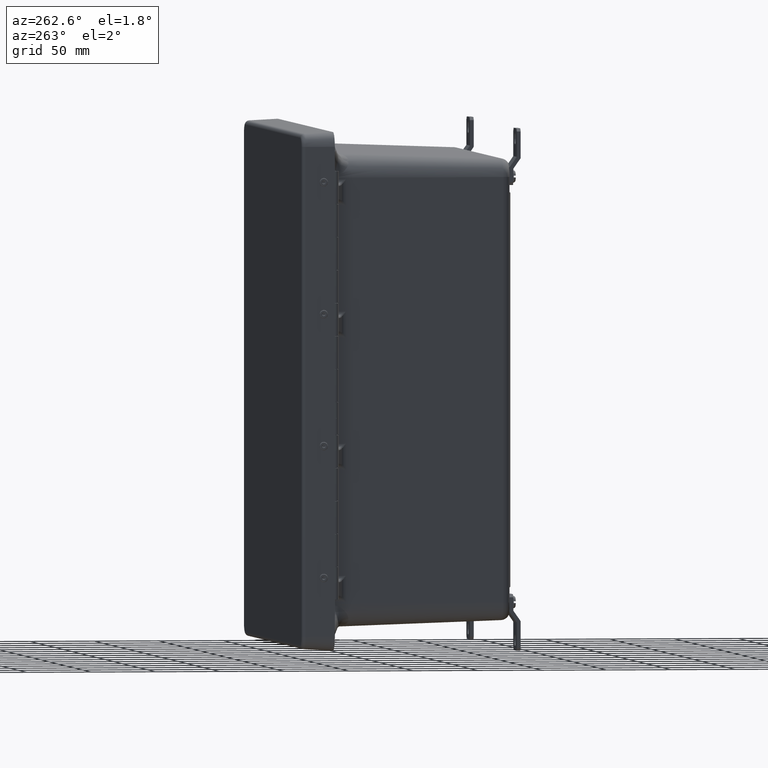
[diagram: clean part render]
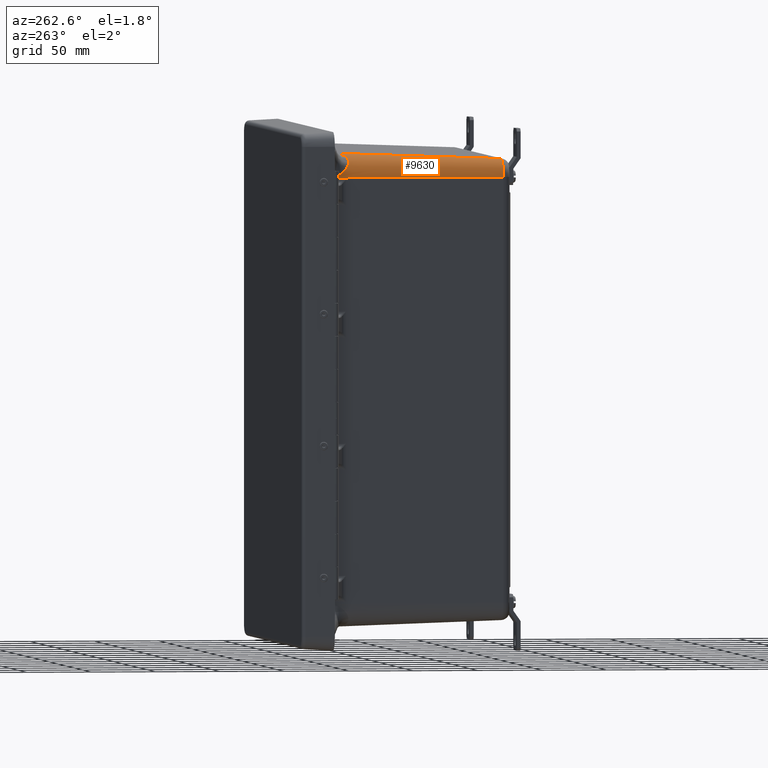
[diagram: same view with one face highlighted and labeled with its STEP entity id]
A machine part, auxiliary view. The second image highlights one B-rep face of the part: STEP entity #9630.
In plain terms, the highlighted conical surface has half-angle 2 deg.
Its self-contained STEP definition (entity closure, byte-faithful):
#395 = DIRECTION ( 'NONE',  ( -0.0000000000000000000, 1.000000000000000000, 0.0000000000000000000 ) ) ;
#1629 = CARTESIAN_POINT ( 'NONE',  ( -5.744040872138377600, -1.029143447813066100, 7.130211326801749300 ) ) ;
#2331 = CARTESIAN_POINT ( 'NONE',  ( -6.213329032877035200, -0.9554713685327967900, 6.617578825154844000 ) ) ;
#2895 = VECTOR ( 'NONE', #38627, 39.37007874015748900 ) ;
#3644 = CONICAL_SURFACE ( 'NONE', #39448, 0.7510500000000007700, 0.03490658503988666700 ) ;
#3772 = CARTESIAN_POINT ( 'NONE',  ( -6.022943462444144000, -1.156043319571061800, 6.949425542123053700 ) ) ;
#5957 = ORIENTED_EDGE ( 'NONE', *, *, #48336, .T. ) ;
#6360 = CARTESIAN_POINT ( 'NONE',  ( -5.777234892600024100, -1.056819736174695400, 7.117015636384958400 ) ) ;
#7085 = CARTESIAN_POINT ( 'NONE',  ( -6.227154392422150400, -0.8808879406613500100, 6.558970258961751100 ) ) ;
#9561 = EDGE_CURVE ( 'NONE', #11147, #25221, #58443, .T. ) ;
#9630 = ADVANCED_FACE ( 'NONE', ( #54021 ), #3644, .T. ) ;
#10917 = DIRECTION ( 'NONE',  ( -0.0000000000000000000, -1.000000000000000000, -0.0000000000000000000 ) ) ;
#10943 = CARTESIAN_POINT ( 'NONE',  ( -5.529664449861353000, -0.7655660251568500200, 7.177002396418979300 ) ) ;
#10948 = EDGE_LOOP ( 'NONE', ( #51692, #5957, #18355, #13406, #39122, #36849 ) ) ;
#11138 = CARTESIAN_POINT ( 'NONE',  ( -5.822486019312259800, -1.090077879566765200, 7.096374726079320200 ) ) ;
#11147 = VERTEX_POINT ( 'NONE', #15905 ) ;
#11647 = CARTESIAN_POINT ( 'NONE',  ( -6.103818589361640800, -1.136941058403229800, 6.852506129202412300 ) ) ;
#11859 = CARTESIAN_POINT ( 'NONE',  ( -6.235723141973352300, -0.8003748708896041300, 6.506910598756973300 ) ) ;
#13406 = ORIENTED_EDGE ( 'NONE', *, *, #28290, .T. ) ;
#14471 = DIRECTION ( 'NONE',  ( 0.0000000000000000000, 0.9993908270190957600, 0.03489949670250104600 ) ) ;
#14883 = CARTESIAN_POINT ( 'NONE',  ( -6.008787891838443900, -1.156043319571062000, 6.963516816222676400 ) ) ;
#15508 = LINE ( 'NONE', #57423, #2895 ) ;
#15705 = CARTESIAN_POINT ( 'NONE',  ( -5.553364788984592500, -0.8040038237361802900, 7.174784495295840600 ) ) ;
#15904 = CARTESIAN_POINT ( 'NONE',  ( -5.881323593671899300, -1.123184564172618800, 7.063054465843641200 ) ) ;
#15905 = CARTESIAN_POINT ( 'NONE',  ( -6.059957889753477800, -5.886844587691329300, 6.452978309398322000 ) ) ;
#16408 = CARTESIAN_POINT ( 'NONE',  ( -6.149982024620752200, -1.097618812791008900, 6.776883375592166900 ) ) ;
#16608 = CARTESIAN_POINT ( 'NONE',  ( -6.239182313269122200, -0.7435653765515742900, 6.477431946349113900 ) ) ;
#18028 = LINE ( 'NONE', #42817, #43227 ) ;
#18355 = ORIENTED_EDGE ( 'NONE', *, *, #36175, .T. ) ;
#19335 = EDGE_CURVE ( 'NONE', #11147, #40784, #15508, .T. ) ;
#20198 = VERTEX_POINT ( 'NONE', #50273 ) ;
#20297 = CARTESIAN_POINT ( 'NONE',  ( -5.514659739717544100, -5.886844587691329300, 6.998276459434254800 ) ) ;
#20447 = CARTESIAN_POINT ( 'NONE',  ( -5.595769161846014600, -0.8659155850741959700, 7.169271956100528700 ) ) ;
#20645 = CARTESIAN_POINT ( 'NONE',  ( -5.916978333725680300, -1.138377464798907800, 7.039521251324380600 ) ) ;
#20687 = B_SPLINE_CURVE_WITH_KNOTS ( 'NONE', 3,
 ( #29784, #58120, #10943, #44051, #15705, #48835, #20447, #53591, #25201, #58303, #29989, #1629, #34745, #6360, #39527, #11138, #44250, #15904, #49042, #20645, #53780, #25408, #58505, #30187 ),
 .UNSPECIFIED., .F., .F.,
 ( 4, 2, 2, 2, 2, 2, 2, 2, 2, 2, 2, 4 ),
 ( 4.718958039861916000E-017, 0.001148360310716650500, 0.002296720621433253700, 0.004593441242866467600, 0.006890161864299682700, 0.009186882485732897000, 0.01033524279644950300, 0.01148360310716611100, 0.01378032372859932600, 0.01492868403931591300, 0.01607704435003250200, 0.01837376497146572500 ),
 .UNSPECIFIED. ) ;
#20965 = CARTESIAN_POINT ( 'NONE',  ( -6.045594838978848500, -1.156043319571061800, 6.926234102568138000 ) ) ;
#21161 = CARTESIAN_POINT ( 'NONE',  ( -6.178181486861804600, -1.053208806094498600, 6.717239863985349200 ) ) ;
#21350 = CARTESIAN_POINT ( 'NONE',  ( -6.241112994227499700, -0.6992411324801990300, 6.458385472299930500 ) ) ;
#24201 = CARTESIAN_POINT ( 'NONE',  ( -5.514659739717544100, 0.005117501308141511400, 6.452978309398322000 ) ) ;
#24408 = DIRECTION ( 'NONE',  ( 0.0000000000000000000, 1.000000000000000000, 0.0000000000000000000 ) ) ;
#25201 = CARTESIAN_POINT ( 'NONE',  ( -5.651285750710402000, -0.9353961063248763500, 7.158367668216826000 ) ) ;
#25221 = VERTEX_POINT ( 'NONE', #20297 ) ;
#25408 = CARTESIAN_POINT ( 'NONE',  ( -5.963734578075035500, -1.152455502749859800, 7.004504509240929300 ) ) ;
#25413 = CARTESIAN_POINT ( 'NONE',  ( -6.241642157261383200, -0.6840878858139726200, 6.452978309398322000 ) ) ;
#25928 = CARTESIAN_POINT ( 'NONE',  ( -6.192049167825031100, -1.022782157007117400, 6.682634782852406200 ) ) ;
#28290 = EDGE_CURVE ( 'NONE', #43559, #40784, #49911, .T. ) ;
#28753 = CARTESIAN_POINT ( 'NONE',  ( -5.514659739717544100, -5.886844587691332000, 6.452978309398322000 ) ) ;
#29784 = CARTESIAN_POINT ( 'NONE',  ( -5.514659739717544100, -0.7394303905419332700, 7.178028124091459200 ) ) ;
#29920 = AXIS2_PLACEMENT_3D ( 'NONE', #28753, #395, #33533 ) ;
#29989 = CARTESIAN_POINT ( 'NONE',  ( -5.711619789367548000, -0.9996013923711241100, 7.141699716185067700 ) ) ;
#30187 = CARTESIAN_POINT ( 'NONE',  ( -6.008787891838443900, -1.156043319571062000, 6.963516816222676400 ) ) ;
#30695 = CARTESIAN_POINT ( 'NONE',  ( -6.207327827059825300, -0.9788555973382008200, 6.638424636603788000 ) ) ;
#33533 = DIRECTION ( 'NONE',  ( 0.0000000000000000000, 0.0000000000000000000, -1.000000000000000000 ) ) ;
#33927 = DIRECTION ( 'NONE',  ( 0.0000000000000000000, 0.0000000000000000000, 1.000000000000000000 ) ) ;
#34745 = CARTESIAN_POINT ( 'NONE',  ( -5.755045030261027400, -1.038668347089864800, 7.126039752723477800 ) ) ;
#35059 = CARTESIAN_POINT ( 'NONE',  ( -6.022943462444144000, -1.156043319571061800, 6.949425542123053700 ) ) ;
#35449 = CARTESIAN_POINT ( 'NONE',  ( -6.223242545800423500, -0.9065146480721980600, 6.577873243557594000 ) ) ;
#36175 = EDGE_CURVE ( 'NONE', #44275, #43559, #56352, .T. ) ;
#36849 = ORIENTED_EDGE ( 'NONE', *, *, #9561, .T. ) ;
#38627 = DIRECTION ( 'NONE',  ( -0.03489949670250104600, 0.9993908270190957600, -5.918070766394789300E-018 ) ) ;
#39122 = ORIENTED_EDGE ( 'NONE', *, *, #19335, .F. ) ;
#39281 = CARTESIAN_POINT ( 'NONE',  ( -5.514659739717544100, -1.156043319571061800, 6.452978309398322000 ) ) ;
#39448 = AXIS2_PLACEMENT_3D ( 'NONE', #24201, #24408, #33927 ) ;
#39527 = CARTESIAN_POINT ( 'NONE',  ( -5.788452642052451600, -1.065475963901352000, 7.112152110048279900 ) ) ;
#40040 = CARTESIAN_POINT ( 'NONE',  ( -6.066210487609055200, -1.152077196925946900, 6.902167448230327900 ) ) ;
#40249 = CARTESIAN_POINT ( 'NONE',  ( -6.233405478076829100, -0.8277206342707753600, 6.523440419732627200 ) ) ;
#40784 = VERTEX_POINT ( 'NONE', #25413 ) ;
#42817 = CARTESIAN_POINT ( 'NONE',  ( -5.514659739717544100, 0.005117501308141491500, 7.204028309398323100 ) ) ;
#43227 = VECTOR ( 'NONE', #14471, 39.37007874015748900 ) ;
#43559 = VERTEX_POINT ( 'NONE', #3772 ) ;
#44024 = DIRECTION ( 'NONE',  ( 0.0000000000000000000, 0.0000000000000000000, -1.000000000000000000 ) ) ;
#44051 = CARTESIAN_POINT ( 'NONE',  ( -5.545303131747656000, -0.7912945615865218900, 7.175610022473479800 ) ) ;
#44250 = CARTESIAN_POINT ( 'NONE',  ( -5.845677463304962600, -1.104675247102167200, 7.084291778093422000 ) ) ;
#44275 = VERTEX_POINT ( 'NONE', #14883 ) ;
#44788 = CARTESIAN_POINT ( 'NONE',  ( -6.120846377822090300, -1.125568716113817300, 6.826738503949901100 ) ) ;
#44980 = CARTESIAN_POINT ( 'NONE',  ( -6.238415824171715600, -0.7579471913274531400, 6.484498029439999200 ) ) ;
#47164 = AXIS2_PLACEMENT_3D ( 'NONE', #39281, #10917, #44024 ) ;
#48336 = EDGE_CURVE ( 'NONE', #20198, #44275, #20687, .T. ) ;
#48835 = CARTESIAN_POINT ( 'NONE',  ( -5.578297191270572800, -0.8416497395556651300, 7.171840860146315500 ) ) ;
#49042 = CARTESIAN_POINT ( 'NONE',  ( -5.893305848357447200, -1.128752858288795300, 7.055471564953138300 ) ) ;
#49545 = CARTESIAN_POINT ( 'NONE',  ( -6.162276482974874600, -1.081096140830658500, 6.752644425548727000 ) ) ;
#49747 = CARTESIAN_POINT ( 'NONE',  ( -6.240531390691862700, -0.7142017863488465700, 6.464334916343185400 ) ) ;
#49911 = B_SPLINE_CURVE_WITH_KNOTS ( 'NONE', 3,
 ( #35059, #20965, #40040, #11647, #44788, #16408, #49545, #21161, #54284, #25928, #59023, #30695, #2331, #35449, #7085, #40249, #11859, #44980, #16608, #49747, #21350, #54472 ),
 .UNSPECIFIED., .F., .F.,
 ( 4, 2, 2, 2, 2, 2, 2, 2, 2, 2, 4 ),
 ( 0.0000000000000000000, 0.002432011309531077800, 0.004864022619062155700, 0.007296033928593233900, 0.008512039583358757900, 0.009728045238124283600, 0.01216005654765529500, 0.01459206785718630800, 0.01702407916671732100, 0.01824008482148282300, 0.01945609047624832400 ),
 .UNSPECIFIED. ) ;
#50273 = CARTESIAN_POINT ( 'NONE',  ( -5.514659739717544100, -0.7394303905419332700, 7.178028124091459200 ) ) ;
#51692 = ORIENTED_EDGE ( 'NONE', *, *, #58104, .T. ) ;
#53591 = CARTESIAN_POINT ( 'NONE',  ( -5.632262133839349300, -0.9127853620363723900, 7.162533607824209400 ) ) ;
#53780 = CARTESIAN_POINT ( 'NONE',  ( -5.928734891529625600, -1.142469910507106600, 7.031115416870661300 ) ) ;
#54021 = FACE_OUTER_BOUND ( 'NONE', #10948, .T. ) ;
#54284 = CARTESIAN_POINT ( 'NONE',  ( -6.183055371771835100, -1.043390591451778700, 6.705598557660771100 ) ) ;
#54472 = CARTESIAN_POINT ( 'NONE',  ( -6.241642157261383200, -0.6840878858139726200, 6.452978309398322000 ) ) ;
#56352 = CIRCLE ( 'NONE', #47164, 0.7105013706312298700 ) ;
#57423 = CARTESIAN_POINT ( 'NONE',  ( -6.265709739717546100, 0.005117501308141511400, 6.452978309398322000 ) ) ;
#58104 = EDGE_CURVE ( 'NONE', #25221, #20198, #18028, .T. ) ;
#58120 = CARTESIAN_POINT ( 'NONE',  ( -5.522110244312513000, -0.7525328979729468700, 7.177570574449696000 ) ) ;
#58303 = CARTESIAN_POINT ( 'NONE',  ( -5.690964891356464300, -0.9788032188815444200, 7.147947572468680700 ) ) ;
#58443 = CIRCLE ( 'NONE', #29920, 0.5452981500359338500 ) ;
#58505 = CARTESIAN_POINT ( 'NONE',  ( -5.986890041130585900, -1.156043319571062000, 6.984710799362161100 ) ) ;
#59023 = CARTESIAN_POINT ( 'NONE',  ( -6.196155443422648000, -1.012012890442503400, 6.671341221614939700 ) ) ;